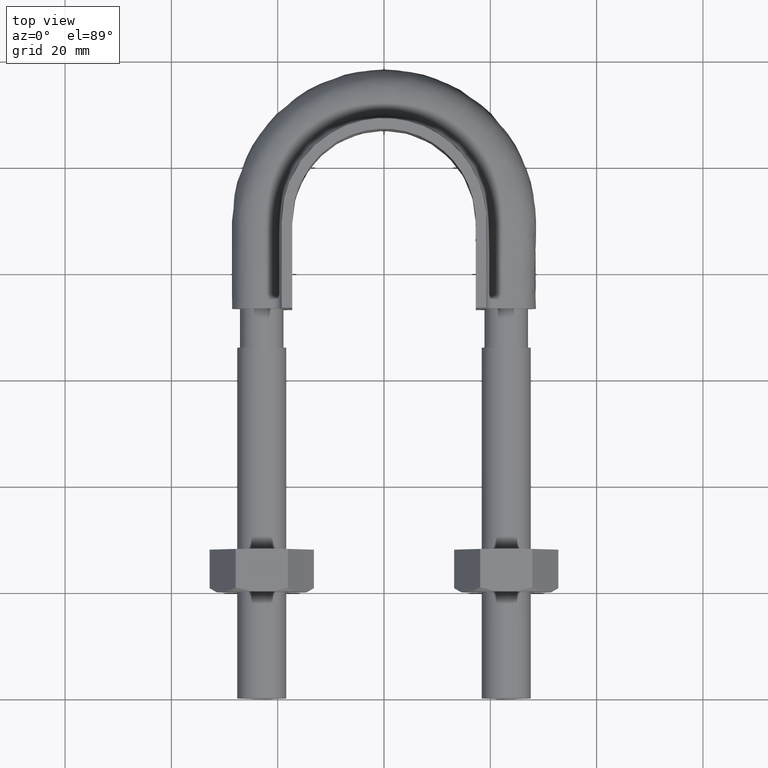
[diagram: clean part render]
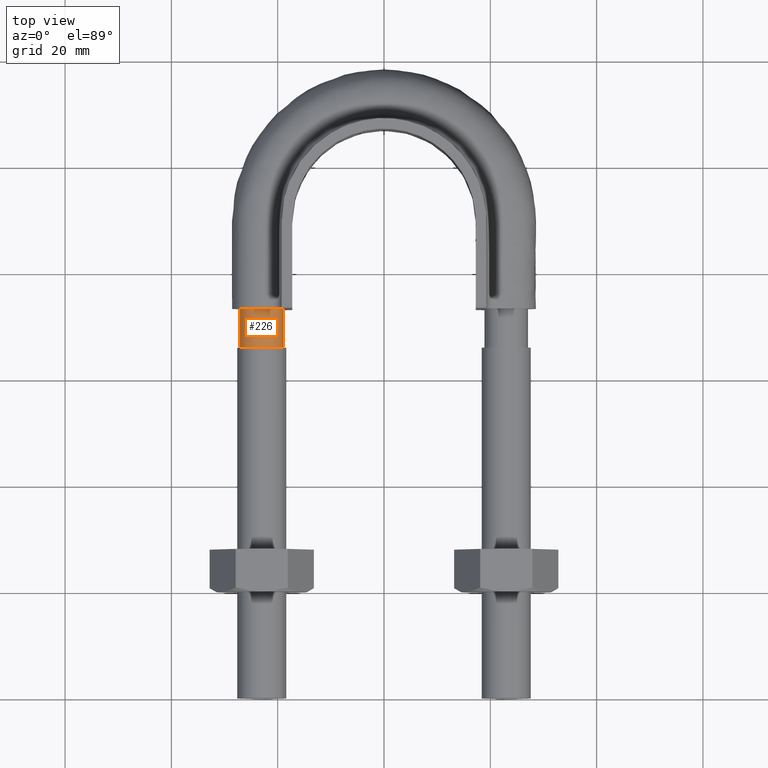
[diagram: same view with one face highlighted and labeled with its STEP entity id]
A machine part, top view. The second image highlights one B-rep face of the part: STEP entity #226.
In plain terms, the highlighted cylindrical surface (bore or boss wall) has radius 4.1 mm, axis along (0, 1, 0).
Its self-contained STEP definition (entity closure, byte-faithful):
#226 = ADVANCED_FACE( '', ( #313, #314 ), #315, .T. );
#313 = FACE_OUTER_BOUND( '', #1161, .T. );
#314 = FACE_OUTER_BOUND( '', #1162, .T. );
#315 = CYLINDRICAL_SURFACE( '', #1163, 4.10000000000000 );
#1161 = EDGE_LOOP( '', ( #1523, #1524, #1525, #1526, #1527, #1528, #1529 ) );
#1162 = EDGE_LOOP( '', ( #1530 ) );
#1163 = AXIS2_PLACEMENT_3D( '', #1531, #1532, #1533 );
#1523 = ORIENTED_EDGE( '', *, *, #2017, .T. );
#1524 = ORIENTED_EDGE( '', *, *, #2018, .T. );
#1525 = ORIENTED_EDGE( '', *, *, #2019, .T. );
#1526 = ORIENTED_EDGE( '', *, *, #2020, .T. );
#1527 = ORIENTED_EDGE( '', *, *, #2021, .T. );
#1528 = ORIENTED_EDGE( '', *, *, #2022, .T. );
#1529 = ORIENTED_EDGE( '', *, *, #2023, .T. );
#1530 = ORIENTED_EDGE( '', *, *, #2024, .T. );
#1531 = CARTESIAN_POINT( '', ( -23.0000000000000, 73.3000000000000, 9.99584936307515E-015 ) );
#1532 = DIRECTION( '', ( 2.44921270764475E-016, 1.00000000000000, 3.06151588455594E-016 ) );
#1533 = DIRECTION( '', ( 1.00000000000000, -2.44921270764475E-016, -3.74915180455534E-032 ) );
#2017 = EDGE_CURVE( '', #2179, #2180, #2181, .T. );
#2018 = EDGE_CURVE( '', #2180, #2182, #2183, .T. );
#2019 = EDGE_CURVE( '', #2182, #2184, #2185, .T. );
#2020 = EDGE_CURVE( '', #2184, #2186, #2187, .T. );
#2021 = EDGE_CURVE( '', #2186, #2188, #2189, .T. );
#2022 = EDGE_CURVE( '', #2188, #2190, #2191, .T. );
#2023 = EDGE_CURVE( '', #2190, #2179, #2192, .T. );
#2024 = EDGE_CURVE( '', #2193, #2193, #2194, .F. );
#2179 = VERTEX_POINT( '', #2577 );
#2180 = VERTEX_POINT( '', #2578 );
#2181 = CIRCLE( '', #2579, 4.10000000000000 );
#2182 = VERTEX_POINT( '', #2580 );
#2183 = CIRCLE( '', #2581, 4.10000000000000 );
#2184 = VERTEX_POINT( '', #2582 );
#2185 = CIRCLE( '', #2583, 4.10000000000000 );
#2186 = VERTEX_POINT( '', #2584 );
#2187 = CIRCLE( '', #2585, 4.10000000000000 );
#2188 = VERTEX_POINT( '', #2586 );
#2189 = CIRCLE( '', #2587, 4.10000000000000 );
#2190 = VERTEX_POINT( '', #2588 );
#2191 = CIRCLE( '', #2589, 4.10000000000000 );
#2192 = CIRCLE( '', #2590, 4.10000000000000 );
#2193 = VERTEX_POINT( '', #2591 );
#2194 = CIRCLE( '', #2592, 4.10000000000000 );
#2577 = CARTESIAN_POINT( '', ( -18.9000000000000, 73.3000000000000, 5.45788039772064E-014 ) );
#2578 = CARTESIAN_POINT( '', ( -20.4436918123929, 73.3000000000000, 3.20550907812989 ) );
#2579 = AXIS2_PLACEMENT_3D( '', #3023, #3024, #3025 );
#2580 = CARTESIAN_POINT( '', ( -23.9123358292465, 73.3000000000000, 3.99720443993963 ) );
#2581 = AXIS2_PLACEMENT_3D( '', #3026, #3027, #3028 );
#2582 = CARTESIAN_POINT( '', ( -26.6939723583998, 73.3000000000000, 1.77892333038215 ) );
#2583 = AXIS2_PLACEMENT_3D( '', #3029, #3030, #3031 );
#2584 = CARTESIAN_POINT( '', ( -26.6939723583911, 73.3000000000000, -1.77892333040032 ) );
#2585 = AXIS2_PLACEMENT_3D( '', #3032, #3033, #3034 );
#2586 = CARTESIAN_POINT( '', ( -23.9123358292209, 73.3000000000000, -3.99720443994547 ) );
#2587 = AXIS2_PLACEMENT_3D( '', #3035, #3036, #3037 );
#2588 = CARTESIAN_POINT( '', ( -20.4436918123793, 73.3000000000000, -3.20550907811900 ) );
#2589 = AXIS2_PLACEMENT_3D( '', #3038, #3039, #3040 );
#2590 = AXIS2_PLACEMENT_3D( '', #3041, #3042, #3043 );
#2591 = CARTESIAN_POINT( '', ( -23.0000000000000, 66.0000000000000, 4.10000000000001 ) );
#2592 = AXIS2_PLACEMENT_3D( '', #3044, #3045, #3046 );
#3023 = CARTESIAN_POINT( '', ( -23.0000000000000, 73.3000000000000, 9.99584936307515E-015 ) );
#3024 = DIRECTION( '', ( -2.44921270764475E-016, -1.00000000000000, -3.06151588455594E-016 ) );
#3025 = DIRECTION( '', ( 1.00000000000000, -2.44921270764475E-016, -3.74915180455534E-032 ) );
#3026 = CARTESIAN_POINT( '', ( -23.0000000000000, 73.3000000000000, 9.99584936307515E-015 ) );
#3027 = DIRECTION( '', ( -2.44921270764475E-016, -1.00000000000000, -3.06151588455594E-016 ) );
#3028 = DIRECTION( '', ( 1.00000000000000, -2.44921270764475E-016, -3.74915180455534E-032 ) );
#3029 = CARTESIAN_POINT( '', ( -23.0000000000000, 73.3000000000000, 9.99584936307515E-015 ) );
#3030 = DIRECTION( '', ( -2.44921270764475E-016, -1.00000000000000, -3.06151588455594E-016 ) );
#3031 = DIRECTION( '', ( 1.00000000000000, -2.44921270764475E-016, -3.74915180455534E-032 ) );
#3032 = CARTESIAN_POINT( '', ( -23.0000000000000, 73.3000000000000, 9.99584936307515E-015 ) );
#3033 = DIRECTION( '', ( -2.44921270764475E-016, -1.00000000000000, -3.06151588455594E-016 ) );
#3034 = DIRECTION( '', ( 1.00000000000000, -2.44921270764475E-016, -3.74915180455534E-032 ) );
#3035 = CARTESIAN_POINT( '', ( -23.0000000000000, 73.3000000000000, 9.99584936307515E-015 ) );
#3036 = DIRECTION( '', ( -2.44921270764475E-016, -1.00000000000000, -3.06151588455594E-016 ) );
#3037 = DIRECTION( '', ( 1.00000000000000, -2.44921270764475E-016, -3.74915180455534E-032 ) );
#3038 = CARTESIAN_POINT( '', ( -23.0000000000000, 73.3000000000000, 9.99584936307515E-015 ) );
#3039 = DIRECTION( '', ( -2.44921270764475E-016, -1.00000000000000, -3.06151588455594E-016 ) );
#3040 = DIRECTION( '', ( 1.00000000000000, -2.44921270764475E-016, -3.74915180455534E-032 ) );
#3041 = CARTESIAN_POINT( '', ( -23.0000000000000, 73.3000000000000, 9.99584936307515E-015 ) );
#3042 = DIRECTION( '', ( -2.44921270764475E-016, -1.00000000000000, -3.06151588455594E-016 ) );
#3043 = DIRECTION( '', ( 1.00000000000000, -2.44921270764475E-016, -3.74915180455534E-032 ) );
#3044 = CARTESIAN_POINT( '', ( -23.0000000000000, 66.0000000000000, 7.76094276734931E-015 ) );
#3045 = DIRECTION( '', ( -2.44921270764475E-016, -1.00000000000000, -3.06151588455594E-016 ) );
#3046 = DIRECTION( '', ( -3.74915180455534E-032, -3.06151588455594E-016, 1.00000000000000 ) );